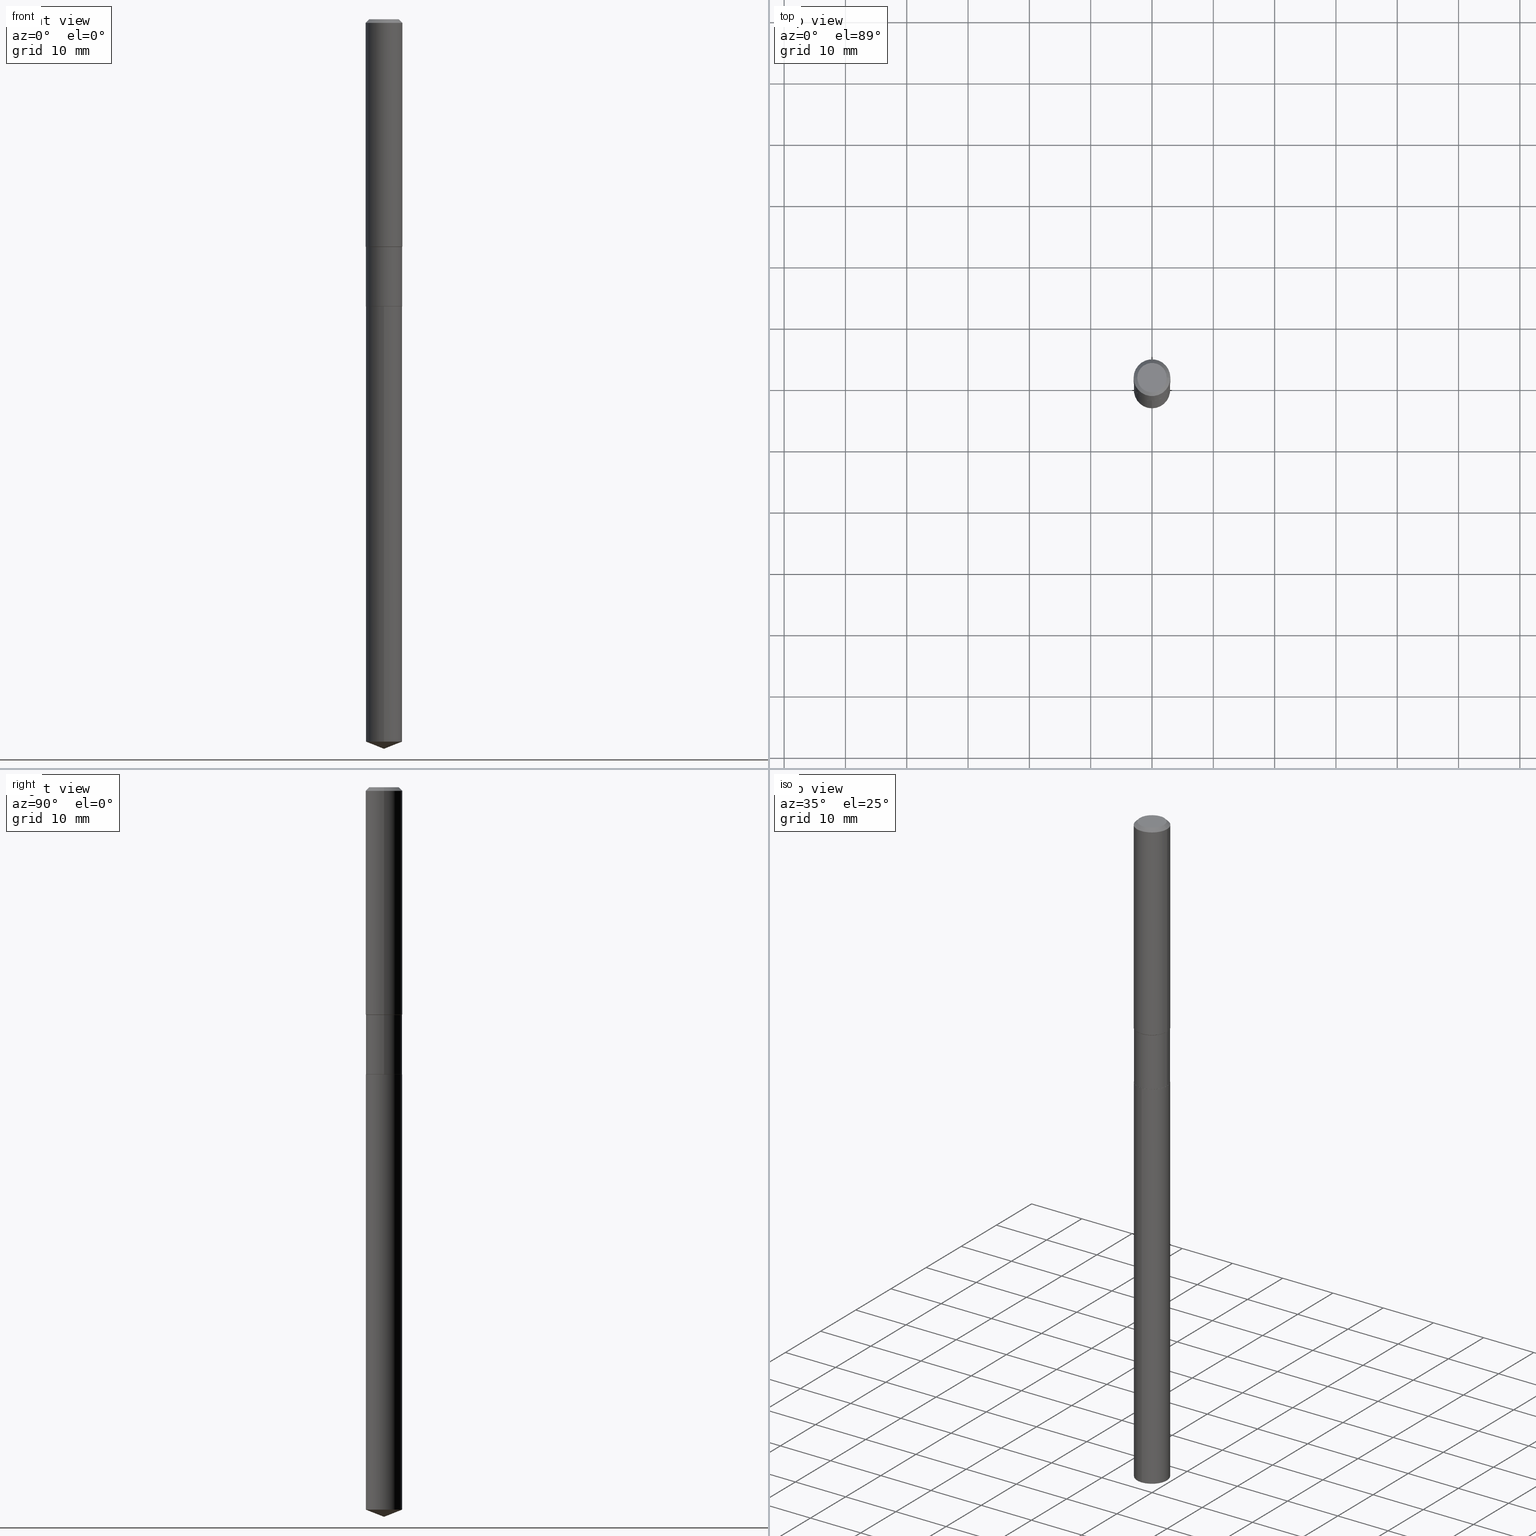
[diagram: canonical four-view strip — front | top / right | iso, engineering-drawing reading convention]
A machine part, canonical four-view strip (front | top / right | iso — engineering-drawing reading convention). The complete STEP part file that produces these views, byte-faithful:
ISO-10303-21;
HEADER;
FILE_DESCRIPTION (( 'STEP AP203' ),
    '1' );
FILE_NAME ('66738.STEP',
    '2024-04-25T04:57:59',
    ( '' ),
    ( '' ),
    'SwSTEP 2.0',
    'SolidWorks 2023',
    '' );
FILE_SCHEMA (( 'CONFIG_CONTROL_DESIGN' ));
ENDSEC;

DATA;
#1 = EDGE_LOOP ( 'NONE', ( #258, #424, #430, #463 ) ) ;
#2 = ADVANCED_FACE ( 'NONE', ( #76 ), #72, .T. ) ;
#3 = CARTESIAN_POINT ( 'NONE',  ( 8.252953875854696891E-16, 0.1161499999999837940, -4.639247298257325625 ) ) ;
#4 = VERTEX_POINT ( 'NONE', #159 ) ;
#5 = LINE ( 'NONE', #314, #442 ) ;
#6 = CONICAL_SURFACE ( 'NONE', #288, 0.1180999999999999966, 0.7853981633974460586 ) ;
#7 = AXIS2_PLACEMENT_3D ( 'NONE', #71, #118, #150 ) ;
#8 = EDGE_LOOP ( 'NONE', ( #52, #445, #345, #199 ) ) ;
#9 = FACE_OUTER_BOUND ( 'NONE', #203, .T. ) ;
#10 = VERTEX_POINT ( 'NONE', #484 ) ;
#11 = CYLINDRICAL_SURFACE ( 'NONE', #478, 0.1161500000000000032 ) ;
#12 = CALENDAR_DATE ( 2024, 25, 4 ) ;
#13 = CARTESIAN_POINT ( 'NONE',  ( -8.110711150131462485E-16, -0.1161500000000161847, -4.639247298257323848 ) ) ;
#14 = CIRCLE ( 'NONE', #349, 0.1156500000000000028 ) ;
#15 = VECTOR ( 'NONE', #403, 39.37007874015748143 ) ;
#16 = ADVANCED_FACE ( 'NONE', ( #68 ), #303, .F. ) ;
#17 = DIRECTION ( 'NONE',  ( 1.000000000000000000, -6.982962677686267499E-15, 4.875432709231658792E-29 ) ) ;
#18 = FACE_OUTER_BOUND ( 'NONE', #370, .T. ) ;
#19 = CARTESIAN_POINT ( 'NONE',  ( 0.1180999999999999966, -9.071566814582237199E-16, -0.02362000000000014088 ) ) ;
#20 = CIRCLE ( 'NONE', #100, 0.1181000000000001632 ) ;
#21 = AXIS2_PLACEMENT_3D ( 'NONE', #353, #132, #86 ) ;
#22 = LINE ( 'NONE', #183, #256 ) ;
#23 = EDGE_CURVE ( 'NONE', #233, #45, #374, .T. ) ;
#24 = EDGE_CURVE ( 'NONE', #75, #318, #365, .T. ) ;
#25 = ADVANCED_BREP_SHAPE_REPRESENTATION ( '66738', ( #257, #97, #420 ), #64 ) ;
#26 = DIRECTION ( 'NONE',  ( -6.982962677686265922E-15, -1.000000000000000000, 2.351999994545211393E-15 ) ) ;
#27 = PERSON_AND_ORGANIZATION_ROLE ( 'design_owner' ) ;
#28 = CARTESIAN_POINT ( 'NONE',  ( 0.1161499999999999477, -5.912823647330860568E-15, -1.461199999999999166 ) ) ;
#29 = MECHANICAL_CONTEXT ( 'NONE', #339, 'mechanical' ) ;
#30 = CIRCLE ( 'NONE', #79, 0.1161500000000000032 ) ;
#31 = VECTOR ( 'NONE', #264, 39.37007874015748143 ) ;
#32 = VERTEX_POINT ( 'NONE', #192 ) ;
#33 = ADVANCED_FACE ( 'NONE', ( #151 ), #6, .T. ) ;
#34 = PERSON_AND_ORGANIZATION ( #321, #368 ) ;
#35 = PERSON_AND_ORGANIZATION ( #321, #368 ) ;
#36 = PRODUCT_RELATED_PRODUCT_CATEGORY ( 'detail', '', ( #251 ) ) ;
#37 = EDGE_LOOP ( 'NONE', ( #224, #237, #421, #240 ) ) ;
#38 = PERSON_AND_ORGANIZATION_ROLE ( 'creator' ) ;
#39 = AXIS2_PLACEMENT_3D ( 'NONE', #247, #394, #44 ) ;
#40 = DIRECTION ( 'NONE',  ( 2.445468806185136597E-29, -3.491481338843145583E-15, -1.000000000000000000 ) ) ;
#41 = CC_DESIGN_PERSON_AND_ORGANIZATION_ASSIGNMENT ( #286, #38, ( #101 ) ) ;
#42 = EDGE_LOOP ( 'NONE', ( #205, #389 ) ) ;
#43 = APPROVAL_STATUS ( 'not_yet_approved' ) ;
#44 = DIRECTION ( 'NONE',  ( -6.982962677686265922E-15, -1.000000000000000000, 4.703999989090422785E-15 ) ) ;
#45 = VERTEX_POINT ( 'NONE', #296 ) ;
#46 = DIRECTION ( 'NONE',  ( -6.982962677686265922E-15, -1.000000000000000000, 2.351999994545211393E-15 ) ) ;
#47 = DIMENSIONAL_EXPONENTS ( 1.000000000000000000, 0.000000000000000000, 0.000000000000000000, 0.000000000000000000, 0.000000000000000000, 0.000000000000000000, 0.000000000000000000 ) ;
#48 = EDGE_LOOP ( 'NONE', ( #267, #172, #119 ) ) ;
#49 = LINE ( 'NONE', #425, #459 ) ;
#50 = ADVANCED_FACE ( 'NONE', ( #300 ), #468, .T. ) ;
#51 = CIRCLE ( 'NONE', #222, 0.1161500000000000032 ) ;
#52 = ORIENTED_EDGE ( 'NONE', *, *, #405, .F. ) ;
#53 = CARTESIAN_POINT ( 'NONE',  ( 3.568550355425657830E-29, -5.094944143706856564E-15, -1.459249999999998826 ) ) ;
#54 = APPROVAL_ROLE ( '' ) ;
#55 = CARTESIAN_POINT ( 'NONE',  ( 4.509444478605390880E-29, -6.438291588826759175E-15, -1.843999999999999417 ) ) ;
#56 = PRODUCT_DEFINITION_SHAPE ( 'NONE', 'NONE',  #438 ) ;
#57 = EDGE_CURVE ( 'NONE', #4, #489, #14, .T. ) ;
#58 = CARTESIAN_POINT ( 'NONE',  ( 5.776197320209327532E-31, -8.246878922347559293E-17, -0.02362000000000014088 ) ) ;
#59 = VECTOR ( 'NONE', #434, 39.37007874015748143 ) ;
#60 = FACE_OUTER_BOUND ( 'NONE', #122, .T. ) ;
#61 = DIRECTION ( 'NONE',  ( -2.445468806185136597E-29, 3.491481338843145583E-15, 1.000000000000000000 ) ) ;
#62 = DIRECTION ( 'NONE',  ( 1.000000000000000000, -6.982962677686265922E-15, 0.000000000000000000 ) ) ;
#63 = EDGE_CURVE ( 'NONE', #413, #75, #408, .T. ) ;
#64 =( GEOMETRIC_REPRESENTATION_CONTEXT ( 3 ) GLOBAL_UNCERTAINTY_ASSIGNED_CONTEXT ( ( #111 ) ) GLOBAL_UNIT_ASSIGNED_CONTEXT ( ( #189, #295, #340 ) ) REPRESENTATION_CONTEXT ( 'NONE', 'WORKASPACE' ) );
#65 = FACE_OUTER_BOUND ( 'NONE', #378, .T. ) ;
#66 = ORIENTED_EDGE ( 'NONE', *, *, #211, .F. ) ;
#67 = DIRECTION ( 'NONE',  ( 0.000000000000000000, 0.000000000000000000, 1.000000000000000000 ) ) ;
#68 = FACE_OUTER_BOUND ( 'NONE', #259, .T. ) ;
#69 = EDGE_CURVE ( 'NONE', #208, #32, #80, .T. ) ;
#70 = ORIENTED_EDGE ( 'NONE', *, *, #23, .T. ) ;
#71 = CARTESIAN_POINT ( 'NONE',  ( 0.000000000000000000, 0.000000000000000000, 0.000000000000000000 ) ) ;
#72 = CYLINDRICAL_SURFACE ( 'NONE', #441, 0.1181000000000000799 ) ;
#73 = ORIENTED_EDGE ( 'NONE', *, *, #305, .F. ) ;
#74 = DATE_AND_TIME ( #412, #169 ) ;
#75 = VERTEX_POINT ( 'NONE', #431 ) ;
#76 = FACE_OUTER_BOUND ( 'NONE', #448, .T. ) ;
#77 = EDGE_CURVE ( 'NONE', #164, #357, #49, .T. ) ;
#78 = ORIENTED_EDGE ( 'NONE', *, *, #310, .T. ) ;
#79 = AXIS2_PLACEMENT_3D ( 'NONE', #55, #271, #93 ) ;
#80 = LINE ( 'NONE', #427, #90 ) ;
#81 = APPROVAL_PERSON_ORGANIZATION ( #232, #386, #54 ) ;
#82 = ORIENTED_EDGE ( 'NONE', *, *, #310, .F. ) ;
#83 = CARTESIAN_POINT ( 'NONE',  ( -8.110711150132146822E-16, -0.1161500000000064425, -1.844499999999999140 ) ) ;
#84 = ORIENTED_EDGE ( 'NONE', *, *, #377, .T. ) ;
#85 = EDGE_CURVE ( 'NONE', #454, #315, #124, .T. ) ;
#86 = DIRECTION ( 'NONE',  ( 1.000000000000000000, -6.982962677686266711E-15, 4.876176775795936353E-29 ) ) ;
#87 = ORIENTED_EDGE ( 'NONE', *, *, #175, .F. ) ;
#88 = DIRECTION ( 'NONE',  ( -6.497071151882127725E-15, -0.9304175679820257949, 0.3665012267242941935 ) ) ;
#89 = AXIS2_PLACEMENT_3D ( 'NONE', #266, #479, #380 ) ;
#90 = VECTOR ( 'NONE', #161, 39.37007874015748143 ) ;
#91 = APPROVAL_ROLE ( '' ) ;
#92 = EDGE_LOOP ( 'NONE', ( #78, #411, #66, #461 ) ) ;
#93 = DIRECTION ( 'NONE',  ( 1.000000000000000000, -6.982962677686265922E-15, 0.000000000000000000 ) ) ;
#94 = EDGE_CURVE ( 'NONE', #413, #135, #301, .T. ) ;
#95 = PERSON_AND_ORGANIZATION_ROLE ( 'design_supplier' ) ;
#96 = CARTESIAN_POINT ( 'NONE',  ( 0.1156500000000000028, -7.247616963170598206E-15, -1.844499999999999584 ) ) ;
#97 = MANIFOLD_SOLID_BREP ( 'Body-Move/Copy2[2]', #105 ) ;
#98 = SHAPE_DEFINITION_REPRESENTATION ( #56, #25 ) ;
#99 = CARTESIAN_POINT ( 'NONE',  ( -0.1181000000000001632, -4.255793172774176789E-15, -1.459249999999998826 ) ) ;
#100 = AXIS2_PLACEMENT_3D ( 'NONE', #212, #268, #458 ) ;
#101 = PRODUCT_DEFINITION_FORMATION_WITH_SPECIFIED_SOURCE ( 'ANY', '', #251, .NOT_KNOWN. ) ;
#102 = DIRECTION ( 'NONE',  ( 1.000000000000000000, -6.982962677686269866E-15, 0.000000000000000000 ) ) ;
#103 = DIRECTION ( 'NONE',  ( -2.445468806185136597E-29, 3.491481338843145583E-15, 1.000000000000000000 ) ) ;
#104 = LINE ( 'NONE', #255, #15 ) ;
#105 = CLOSED_SHELL ( 'NONE', ( #245, #33, #218, #219, #401, #231, #483, #2, #372, #200, #282, #283 ) ) ;
#106 = CONICAL_SURFACE ( 'NONE', #166, 99.94676754584088485, 1.195550537616122622 ) ;
#107 = ORIENTED_EDGE ( 'NONE', *, *, #24, .T. ) ;
#108 = APPLICATION_PROTOCOL_DEFINITION ( 'international standard', 'config_control_design', 1994, #339 ) ;
#109 = EDGE_CURVE ( 'NONE', #315, #274, #388, .T. ) ;
#110 = EDGE_CURVE ( 'NONE', #357, #45, #360, .T. ) ;
#111 = UNCERTAINTY_MEASURE_WITH_UNIT (LENGTH_MEASURE( 1.000000000000000082E-05 ), #189, 'distance_accuracy_value', 'NONE');
#112 = CARTESIAN_POINT ( 'NONE',  ( 4.510667213008483121E-29, -6.440037329496180678E-15, -1.844499999999999362 ) ) ;
#113 = DIRECTION ( 'NONE',  ( 0.7071067811865444641, -2.468850131082224717E-15, 0.7071067811865505703 ) ) ;
#114 = FACE_OUTER_BOUND ( 'NONE', #92, .T. ) ;
#115 = ORIENTED_EDGE ( 'NONE', *, *, #121, .F. ) ;
#116 = LINE ( 'NONE', #152, #31 ) ;
#117 = DIRECTION ( 'NONE',  ( -6.982962677686265133E-15, -1.000000000000000000, 3.498627837349972274E-15 ) ) ;
#118 = DIRECTION ( 'NONE',  ( -2.445468806185136597E-29, 3.491481338843145583E-15, 1.000000000000000000 ) ) ;
#119 = ORIENTED_EDGE ( 'NONE', *, *, #157, .F. ) ;
#120 = ORIENTED_EDGE ( 'NONE', *, *, #337, .F. ) ;
#121 = EDGE_CURVE ( 'NONE', #233, #164, #250, .T. ) ;
#122 = EDGE_LOOP ( 'NONE', ( #383, #457, #407, #107 ) ) ;
#123 = COORDINATED_UNIVERSAL_TIME_OFFSET ( 5, 0, .BEHIND. ) ;
#124 = LINE ( 'NONE', #346, #312 ) ;
#125 = ADVANCED_FACE ( 'NONE', ( #356 ), #11, .T. ) ;
#126 = EDGE_LOOP ( 'NONE', ( #465, #184, #82 ) ) ;
#127 = CIRCLE ( 'NONE', #469, 0.1161500000000000032 ) ;
#128 = DIRECTION ( 'NONE',  ( -6.982962677686265922E-15, -1.000000000000000000, 2.351999994545211393E-15 ) ) ;
#129 = CC_DESIGN_APPROVAL ( #423, ( #438 ) ) ;
#130 = EDGE_LOOP ( 'NONE', ( #241, #170, #355, #304 ) ) ;
#131 = EDGE_CURVE ( 'NONE', #32, #274, #51, .T. ) ;
#132 = DIRECTION ( 'NONE',  ( -2.445468806185136597E-29, 3.491481338843145583E-15, 1.000000000000000000 ) ) ;
#133 = ORIENTED_EDGE ( 'NONE', *, *, #211, .T. ) ;
#134 = DIRECTION ( 'NONE',  ( -2.445468806185136877E-29, 3.491481338843145188E-15, 1.000000000000000000 ) ) ;
#135 = VERTEX_POINT ( 'NONE', #239 ) ;
#136 = DIRECTION ( 'NONE',  ( -2.445477622213737592E-29, 3.491468713788411953E-15, 1.000000000000000000 ) ) ;
#137 = VECTOR ( 'NONE', #113, 39.37007874015748143 ) ;
#138 = AXIS2_PLACEMENT_3D ( 'NONE', #220, #281, #102 ) ;
#139 = CC_DESIGN_PERSON_AND_ORGANIZATION_ASSIGNMENT ( #35, #194, ( #438 ) ) ;
#140 = CARTESIAN_POINT ( 'NONE',  ( 1.134515919063907400E-28, -1.619781008430632187E-14, -4.639247298257324736 ) ) ;
#141 = DIRECTION ( 'NONE',  ( 1.000000000000000000, -6.982962677686269866E-15, 0.000000000000000000 ) ) ;
#142 = DATE_TIME_ROLE ( 'creation_date' ) ;
#143 = FACE_OUTER_BOUND ( 'NONE', #387, .T. ) ;
#144 = AXIS2_PLACEMENT_3D ( 'NONE', #198, #450, #117 ) ;
#145 = VECTOR ( 'NONE', #136, 39.37007874015748143 ) ;
#146 = EDGE_CURVE ( 'NONE', #350, #10, #30, .T. ) ;
#147 = DIRECTION ( 'NONE',  ( -1.000000000000000000, 6.982962677686266711E-15, 0.000000000000000000 ) ) ;
#148 = DIRECTION ( 'NONE',  ( 1.000000000000000000, -6.982962677686266711E-15, 0.000000000000000000 ) ) ;
#149 = AXIS2_PLACEMENT_3D ( 'NONE', #204, #163, #128 ) ;
#150 = DIRECTION ( 'NONE',  ( 1.000000000000000000, -6.982962677686266711E-15, 4.876176775795935232E-29 ) ) ;
#151 = FACE_OUTER_BOUND ( 'NONE', #130, .T. ) ;
#152 = CARTESIAN_POINT ( 'NONE',  ( 0.1161499999999999755, -8.110711150132597459E-16, 5.663679325086977697E-30 ) ) ;
#153 = DIRECTION ( 'NONE',  ( -0.7071067811865459074, 2.468850131082240100E-15, -0.7071067811865491270 ) ) ;
#154 = CARTESIAN_POINT ( 'NONE',  ( 4.510667213008483121E-29, -6.440037329496180678E-15, -1.844499999999999362 ) ) ;
#155 = VECTOR ( 'NONE', #153, 39.37007874015748143 ) ;
#156 = CIRCLE ( 'NONE', #39, 0.1161500000000000032 ) ;
#157 = EDGE_CURVE ( 'NONE', #208, #315, #156, .T. ) ;
#158 = AXIS2_PLACEMENT_3D ( 'NONE', #112, #260, #26 ) ;
#159 = CARTESIAN_POINT ( 'NONE',  ( 0.1156500000000000028, -7.247616963170598206E-15, -1.844499999999999584 ) ) ;
#160 = ORIENTED_EDGE ( 'NONE', *, *, #57, .F. ) ;
#161 = DIRECTION ( 'NONE',  ( -2.445477622213737592E-29, 3.491468713788411953E-15, 1.000000000000000000 ) ) ;
#162 = ORIENTED_EDGE ( 'NONE', *, *, #193, .T. ) ;
#163 = DIRECTION ( 'NONE',  ( -2.445477622213737592E-29, 3.491468713788411953E-15, 1.000000000000000000 ) ) ;
#164 = VERTEX_POINT ( 'NONE', #238 ) ;
#165 = AXIS2_PLACEMENT_3D ( 'NONE', #154, #416, #371 ) ;
#166 = AXIS2_PLACEMENT_3D ( 'NONE', #402, #366, #475 ) ;
#167 = DIRECTION ( 'NONE',  ( 1.000000000000000000, -6.982962677686269866E-15, 0.000000000000000000 ) ) ;
#168 = CC_DESIGN_PERSON_AND_ORGANIZATION_ASSIGNMENT ( #379, #95, ( #101 ) ) ;
#169 = LOCAL_TIME ( 0, 57, 59.00000000000000000, #449 ) ;
#170 = ORIENTED_EDGE ( 'NONE', *, *, #395, .T. ) ;
#171 = DIRECTION ( 'NONE',  ( 2.438088387897960049E-29, -3.491481338843145188E-15, -1.000000000000000000 ) ) ;
#172 = ORIENTED_EDGE ( 'NONE', *, *, #85, .T. ) ;
#173 = CARTESIAN_POINT ( 'NONE',  ( 4.510667213008483121E-29, -6.440037329496180678E-15, -1.844499999999999362 ) ) ;
#174 = DATE_TIME_ROLE ( 'classification_date' ) ;
#175 = EDGE_CURVE ( 'NONE', #45, #357, #20, .T. ) ;
#176 = CYLINDRICAL_SURFACE ( 'NONE', #328, 0.1161499999999999755 ) ;
#177 = AXIS2_PLACEMENT_3D ( 'NONE', #248, #474, #476 ) ;
#178 = DATE_AND_TIME ( #201, #382 ) ;
#179 = DIRECTION ( 'NONE',  ( 1.000000000000000000, -6.982962677686265922E-15, 4.876176775795935793E-29 ) ) ;
#180 = DIRECTION ( 'NONE',  ( 1.000000000000000000, -6.982962677686269866E-15, 0.000000000000000000 ) ) ;
#181 = DIRECTION ( 'NONE',  ( -2.445468806185136597E-29, 3.491481338843145583E-15, 1.000000000000000000 ) ) ;
#182 = APPROVAL_PERSON_ORGANIZATION ( #34, #423, #299 ) ;
#183 = CARTESIAN_POINT ( 'NONE',  ( 0.1180999999999999966, -8.926936027602933910E-16, -0.02362000000000014088 ) ) ;
#184 = ORIENTED_EDGE ( 'NONE', *, *, #213, .T. ) ;
#185 = CARTESIAN_POINT ( 'NONE',  ( -0.1156500000000000028, -5.618294655589625385E-15, -1.844499999999999584 ) ) ;
#186 = FACE_OUTER_BOUND ( 'NONE', #343, .T. ) ;
#187 = ORIENTED_EDGE ( 'NONE', *, *, #316, .T. ) ;
#188 = CONICAL_SURFACE ( 'NONE', #404, 0.1180999999999999966, 0.7853981633974460586 ) ;
#189 =( CONVERSION_BASED_UNIT ( 'INCH', #373 ) LENGTH_UNIT ( ) NAMED_UNIT ( #47 ) );
#190 = ORIENTED_EDGE ( 'NONE', *, *, #175, .T. ) ;
#191 = APPROVAL_STATUS ( 'not_yet_approved' ) ;
#192 = CARTESIAN_POINT ( 'NONE',  ( 8.252953875854700835E-16, 0.1161499999999935501, -1.844499999999999584 ) ) ;
#193 = EDGE_CURVE ( 'NONE', #350, #164, #309, .T. ) ;
#194 = PERSON_AND_ORGANIZATION_ROLE ( 'creator' ) ;
#195 = CARTESIAN_POINT ( 'NONE',  ( 0.000000000000000000, 0.000000000000000000, 0.000000000000000000 ) ) ;
#196 = ORIENTED_EDGE ( 'NONE', *, *, #77, .T. ) ;
#197 = AXIS2_PLACEMENT_3D ( 'NONE', #140, #325, #439 ) ;
#198 = CARTESIAN_POINT ( 'NONE',  ( -8.482160014494133121E-28, 1.211018439696339848E-13, 34.68507874015747916 ) ) ;
#199 = ORIENTED_EDGE ( 'NONE', *, *, #146, .F. ) ;
#200 = ADVANCED_FACE ( 'NONE', ( #307 ), #418, .F. ) ;
#201 = CALENDAR_DATE ( 2024, 25, 4 ) ;
#202 = CARTESIAN_POINT ( 'NONE',  ( 2.358133508849003952E-46, -3.366789680499277518E-32, -9.642868896486260050E-18 ) ) ;
#203 = EDGE_LOOP ( 'NONE', ( #190, #311, #417, #120 ) ) ;
#204 = CARTESIAN_POINT ( 'NONE',  ( 4.510667213008483121E-29, -6.440037329496180678E-15, -1.844499999999999362 ) ) ;
#205 = ORIENTED_EDGE ( 'NONE', *, *, #94, .T. ) ;
#206 = VECTOR ( 'NONE', #364, 39.37007874015748143 ) ;
#207 = DIRECTION ( 'NONE',  ( -1.000000000000000000, 6.982962677686265922E-15, -4.876176775795935793E-29 ) ) ;
#208 = VERTEX_POINT ( 'NONE', #3 ) ;
#209 = DIRECTION ( 'NONE',  ( 1.000000000000000000, -6.982962677686263555E-15, 0.000000000000000000 ) ) ;
#210 = SECURITY_CLASSIFICATION_LEVEL ( 'unclassified' ) ;
#211 = EDGE_CURVE ( 'NONE', #274, #32, #215, .T. ) ;
#212 = CARTESIAN_POINT ( 'NONE',  ( 3.568550355425657830E-29, -5.094944143706856564E-15, -1.459249999999998826 ) ) ;
#213 = EDGE_CURVE ( 'NONE', #454, #208, #5, .T. ) ;
#214 = LINE ( 'NONE', #284, #59 ) ;
#215 = CIRCLE ( 'NONE', #149, 0.1161500000000000032 ) ;
#216 = SECURITY_CLASSIFICATION ( '', '', #210 ) ;
#217 = CARTESIAN_POINT ( 'NONE',  ( 4.510667213008483681E-29, -6.440037329496181467E-15, -1.844499999999999584 ) ) ;
#218 = ADVANCED_FACE ( 'NONE', ( #9 ), #462, .T. ) ;
#219 = ADVANCED_FACE ( 'NONE', ( #317 ), #435, .T. ) ;
#220 = CARTESIAN_POINT ( 'NONE',  ( 4.510667213008483681E-29, -6.440037329496181467E-15, -1.844499999999999584 ) ) ;
#221 = CARTESIAN_POINT ( 'NONE',  ( 4.509444478605390880E-29, -6.438291588826759175E-15, -1.843999999999999417 ) ) ;
#222 = AXIS2_PLACEMENT_3D ( 'NONE', #319, #456, #385 ) ;
#223 = CYLINDRICAL_SURFACE ( 'NONE', #158, 0.1161500000000000032 ) ;
#224 = ORIENTED_EDGE ( 'NONE', *, *, #193, .F. ) ;
#225 = DIRECTION ( 'NONE',  ( 1.000000000000000000, 0.000000000000000000, 0.000000000000000000 ) ) ;
#226 = ORIENTED_EDGE ( 'NONE', *, *, #131, .T. ) ;
#227 = CARTESIAN_POINT ( 'NONE',  ( -0.09447999999999998066, 7.009847083995354710E-16, -1.928573779297727792E-17 ) ) ;
#228 = VECTOR ( 'NONE', #446, 39.37007874015748143 ) ;
#229 = CC_DESIGN_SECURITY_CLASSIFICATION ( #216, ( #101 ) ) ;
#230 = CARTESIAN_POINT ( 'NONE',  ( -0.1156500000000000028, -5.615645428415514184E-15, -1.844499999999999584 ) ) ;
#231 = ADVANCED_FACE ( 'NONE', ( #253 ), #176, .T. ) ;
#232 = PERSON_AND_ORGANIZATION ( #321, #368 ) ;
#233 = VERTEX_POINT ( 'NONE', #323 ) ;
#234 = ORIENTED_EDGE ( 'NONE', *, *, #121, .T. ) ;
#235 = AXIS2_PLACEMENT_3D ( 'NONE', #58, #181, #148 ) ;
#236 = DIRECTION ( 'NONE',  ( -0.7071067811865444641, 7.493145998870343116E-15, 0.7071067811865505703 ) ) ;
#237 = ORIENTED_EDGE ( 'NONE', *, *, #146, .T. ) ;
#238 = CARTESIAN_POINT ( 'NONE',  ( -0.1161499999999999477, -4.944726672986823807E-15, -1.461199999999999166 ) ) ;
#239 = CARTESIAN_POINT ( 'NONE',  ( 0.09447999999999998066, -7.704367267948738690E-16, -1.928573779296752193E-17 ) ) ;
#240 = ORIENTED_EDGE ( 'NONE', *, *, #316, .F. ) ;
#241 = ORIENTED_EDGE ( 'NONE', *, *, #292, .F. ) ;
#242 = AXIS2_PLACEMENT_3D ( 'NONE', #400, #440, #179 ) ;
#243 = CIRCLE ( 'NONE', #235, 0.1180999999999999966 ) ;
#244 = DIRECTION ( 'NONE',  ( -2.445468806185136597E-29, 3.491481338843145583E-15, 1.000000000000000000 ) ) ;
#245 = ADVANCED_FACE ( 'NONE', ( #143 ), #289, .T. ) ;
#246 = COORDINATED_UNIVERSAL_TIME_OFFSET ( 5, 0, .BEHIND. ) ;
#247 = CARTESIAN_POINT ( 'NONE',  ( 1.134515919063907400E-28, -1.619781008430632187E-14, -4.639247298257324736 ) ) ;
#248 = CARTESIAN_POINT ( 'NONE',  ( 4.510667213008483681E-29, -6.440037329496181467E-15, -1.844499999999999584 ) ) ;
#249 = CARTESIAN_POINT ( 'NONE',  ( 5.776197320209327532E-31, -8.246878922347559293E-17, -0.02362000000000014088 ) ) ;
#250 = CIRCLE ( 'NONE', #410, 0.1161499999999999477 ) ;
#251 = PRODUCT ( '66738', '66738', '', ( #29 ) ) ;
#252 = CC_DESIGN_DATE_AND_TIME_ASSIGNMENT ( #369, #142, ( #438 ) ) ;
#253 = FACE_OUTER_BOUND ( 'NONE', #37, .T. ) ;
#254 = DIRECTION ( 'NONE',  ( -2.445468806185136597E-29, 3.491481338843145583E-15, 1.000000000000000000 ) ) ;
#255 = CARTESIAN_POINT ( 'NONE',  ( -0.1181000000000000799, 8.391509709326788873E-16, -5.809262341591047988E-30 ) ) ;
#256 = VECTOR ( 'NONE', #330, 39.37007874015748143 ) ;
#257 = MANIFOLD_SOLID_BREP ( 'Body-Move/Copy2[1]', #409 ) ;
#258 = ORIENTED_EDGE ( 'NONE', *, *, #69, .F. ) ;
#259 = EDGE_LOOP ( 'NONE', ( #133, #226 ) ) ;
#260 = DIRECTION ( 'NONE',  ( -2.445477622213737592E-29, 3.491468713788411953E-15, 1.000000000000000000 ) ) ;
#261 = DIRECTION ( 'NONE',  ( -2.445468806185136597E-29, 3.491481338843145583E-15, 1.000000000000000000 ) ) ;
#262 = APPLICATION_PROTOCOL_DEFINITION ( 'international standard', 'config_control_design', 1994, #486 ) ;
#263 = CONICAL_SURFACE ( 'NONE', #177, 0.1156500000000000028, 0.7853981633972775267 ) ;
#264 = DIRECTION ( 'NONE',  ( -2.445468806185136877E-29, 3.491481338843145188E-15, 1.000000000000000000 ) ) ;
#265 = CALENDAR_DATE ( 2024, 25, 4 ) ;
#266 = CARTESIAN_POINT ( 'NONE',  ( 5.776197320209327532E-31, -8.246878922347559293E-17, -0.02362000000000014088 ) ) ;
#267 = ORIENTED_EDGE ( 'NONE', *, *, #213, .F. ) ;
#268 = DIRECTION ( 'NONE',  ( -2.445468806185136597E-29, 3.491481338843145583E-15, 1.000000000000000000 ) ) ;
#269 = ORIENTED_EDGE ( 'NONE', *, *, #399, .F. ) ;
#270 = AXIS2_PLACEMENT_3D ( 'NONE', #464, #275, #180 ) ;
#271 = DIRECTION ( 'NONE',  ( -2.445468806185136597E-29, 3.491481338843145583E-15, 1.000000000000000000 ) ) ;
#272 = ORIENTED_EDGE ( 'NONE', *, *, #110, .T. ) ;
#273 = DIRECTION ( 'NONE',  ( 6.611014441532074478E-15, 0.9304175679820283484, 0.3665012267242876431 ) ) ;
#274 = VERTEX_POINT ( 'NONE', #287 ) ;
#275 = DIRECTION ( 'NONE',  ( -2.445468806185136597E-29, 3.491481338843145583E-15, 1.000000000000000000 ) ) ;
#276 = COORDINATED_UNIVERSAL_TIME_OFFSET ( 5, 0, .BEHIND. ) ;
#277 = ORIENTED_EDGE ( 'NONE', *, *, #23, .F. ) ;
#278 = AXIS2_PLACEMENT_3D ( 'NONE', #217, #61, #362 ) ;
#279 = DIRECTION ( 'NONE',  ( -2.445468806185136597E-29, 3.491481338843145583E-15, 1.000000000000000000 ) ) ;
#280 = APPROVAL_DATE_TIME ( #396, #386 ) ;
#281 = DIRECTION ( 'NONE',  ( -2.445468806185136597E-29, 3.491481338843145583E-15, 1.000000000000000000 ) ) ;
#282 = ADVANCED_FACE ( 'NONE', ( #18 ), #363, .F. ) ;
#283 = ADVANCED_FACE ( 'NONE', ( #470 ), #263, .T. ) ;
#284 = CARTESIAN_POINT ( 'NONE',  ( 0.1181000000000000799, -8.246878922347486570E-16, 5.758764772215004644E-30 ) ) ;
#285 = APPROVAL ( #384, 'UNSPECIFIED' ) ;
#286 = PERSON_AND_ORGANIZATION ( #321, #368 ) ;
#287 = CARTESIAN_POINT ( 'NONE',  ( -8.110711150132146822E-16, -0.1161500000000064425, -1.844499999999999140 ) ) ;
#288 = AXIS2_PLACEMENT_3D ( 'NONE', #338, #40, #453 ) ;
#289 = CONICAL_SURFACE ( 'NONE', #278, 0.1156500000000000028, 0.7853981633972775267 ) ;
#290 = CARTESIAN_POINT ( 'NONE',  ( 0.000000000000000000, 0.000000000000000000, 0.000000000000000000 ) ) ;
#291 = CARTESIAN_POINT ( 'NONE',  ( -0.1161500000000000032, -4.944726672986823807E-15, -1.843999999999999417 ) ) ;
#292 = EDGE_CURVE ( 'NONE', #135, #413, #342, .T. ) ;
#293 = CARTESIAN_POINT ( 'NONE',  ( 1.145706266007135908E-28, -1.635753092409870552E-14, -4.684999999999999609 ) ) ;
#294 = CIRCLE ( 'NONE', #138, 0.1156500000000000028 ) ;
#295 =( NAMED_UNIT ( * ) PLANE_ANGLE_UNIT ( ) SI_UNIT ( $, .RADIAN. ) );
#296 = CARTESIAN_POINT ( 'NONE',  ( 0.1181000000000001632, -5.919632035941605615E-15, -1.459249999999998826 ) ) ;
#297 = EDGE_CURVE ( 'NONE', #489, #4, #294, .T. ) ;
#298 = ORIENTED_EDGE ( 'NONE', *, *, #57, .T. ) ;
#299 = APPROVAL_ROLE ( '' ) ;
#300 = FACE_OUTER_BOUND ( 'NONE', #48, .T. ) ;
#301 = CIRCLE ( 'NONE', #367, 0.09447999999999998066 ) ;
#302 = APPROVAL_PERSON_ORGANIZATION ( #306, #285, #91 ) ;
#303 = PLANE ( 'NONE',  #165 ) ;
#304 = ORIENTED_EDGE ( 'NONE', *, *, #63, .F. ) ;
#305 = EDGE_CURVE ( 'NONE', #4, #10, #358, .T. ) ;
#306 = PERSON_AND_ORGANIZATION ( #321, #368 ) ;
#307 = FACE_OUTER_BOUND ( 'NONE', #42, .T. ) ;
#308 = ORIENTED_EDGE ( 'NONE', *, *, #377, .F. ) ;
#309 = LINE ( 'NONE', #490, #381 ) ;
#310 = EDGE_CURVE ( 'NONE', #315, #208, #392, .T. ) ;
#311 = ORIENTED_EDGE ( 'NONE', *, *, #399, .T. ) ;
#312 = VECTOR ( 'NONE', #88, 39.37007874015748854 ) ;
#313 = CONICAL_SURFACE ( 'NONE', #333, 0.1161499999999999477, 0.7853981633974439491 ) ;
#314 = CARTESIAN_POINT ( 'NONE',  ( 1.145706294525379776E-28, -1.635753092409870552E-14, -4.684999999999999609 ) ) ;
#315 = VERTEX_POINT ( 'NONE', #13 ) ;
#316 = EDGE_CURVE ( 'NONE', #164, #233, #451, .T. ) ;
#317 = FACE_OUTER_BOUND ( 'NONE', #332, .T. ) ;
#318 = VERTEX_POINT ( 'NONE', #19 ) ;
#319 = CARTESIAN_POINT ( 'NONE',  ( 4.510667213008483121E-29, -6.440037329496180678E-15, -1.844499999999999362 ) ) ;
#320 = CALENDAR_DATE ( 2024, 25, 4 ) ;
#321 = PERSON ( 'UNSPECIFIED', 'UNSPECIFIED', 'UNSPECIFIED', ('UNSPECIFIED'), ('UNSPECIFIED'), ('UNSPECIFIED') ) ;
#322 = AXIS2_PLACEMENT_3D ( 'NONE', #53, #244, #209 ) ;
#323 = CARTESIAN_POINT ( 'NONE',  ( 0.1161499999999999477, -5.912823647330860568E-15, -1.461199999999999166 ) ) ;
#324 = EDGE_CURVE ( 'NONE', #318, #75, #243, .T. ) ;
#325 = DIRECTION ( 'NONE',  ( -2.445477622213737592E-29, 3.491468713788411953E-15, 1.000000000000000000 ) ) ;
#326 = DIRECTION ( 'NONE',  ( 1.000000000000000000, -6.982962677686266711E-15, 4.876176775795935232E-29 ) ) ;
#327 = FACE_OUTER_BOUND ( 'NONE', #126, .T. ) ;
#328 = AXIS2_PLACEMENT_3D ( 'NONE', #290, #254, #326 ) ;
#329 = ADVANCED_FACE ( 'NONE', ( #327 ), #106, .T. ) ;
#330 = DIRECTION ( 'NONE',  ( 0.7071067811865459074, -7.319954787623249734E-15, -0.7071067811865491270 ) ) ;
#331 = DIRECTION ( 'NONE',  ( -2.445468806185136597E-29, 3.491481338843145583E-15, 1.000000000000000000 ) ) ;
#332 = EDGE_LOOP ( 'NONE', ( #234, #196, #87, #277 ) ) ;
#333 = AXIS2_PLACEMENT_3D ( 'NONE', #487, #331, #406 ) ;
#334 =( LENGTH_UNIT ( ) NAMED_UNIT ( * ) SI_UNIT ( $, .METRE. ) );
#335 = CC_DESIGN_PERSON_AND_ORGANIZATION_ASSIGNMENT ( #447, #27, ( #251 ) ) ;
#336 = DIRECTION ( 'NONE',  ( 1.000000000000000000, -6.982962677686269866E-15, 0.000000000000000000 ) ) ;
#337 = EDGE_CURVE ( 'NONE', #45, #318, #214, .T. ) ;
#338 = CARTESIAN_POINT ( 'NONE',  ( 5.776197320209327532E-31, -8.246878922347559293E-17, -0.02362000000000014088 ) ) ;
#339 = APPLICATION_CONTEXT ( 'configuration controlled 3d designs of mechanical parts and assemblies' ) ;
#340 =( NAMED_UNIT ( * ) SI_UNIT ( $, .STERADIAN. ) SOLID_ANGLE_UNIT ( ) );
#341 = DIRECTION ( 'NONE',  ( 1.000000000000000000, -6.982962677686266711E-15, 4.876176775795936353E-29 ) ) ;
#342 = CIRCLE ( 'NONE', #351, 0.09447999999999998066 ) ;
#343 = EDGE_LOOP ( 'NONE', ( #426, #187, #70, #481 ) ) ;
#344 = CARTESIAN_POINT ( 'NONE',  ( 4.510667213008483681E-29, -6.440037329496181467E-15, -1.844499999999999584 ) ) ;
#345 = ORIENTED_EDGE ( 'NONE', *, *, #305, .T. ) ;
#346 = CARTESIAN_POINT ( 'NONE',  ( 1.145703013774184976E-28, -1.635757749792562073E-14, -4.684999999999999609 ) ) ;
#347 = ORIENTED_EDGE ( 'NONE', *, *, #297, .F. ) ;
#348 = DIRECTION ( 'NONE',  ( -2.445477622213737592E-29, 3.491468713788411953E-15, 1.000000000000000000 ) ) ;
#349 = AXIS2_PLACEMENT_3D ( 'NONE', #344, #261, #336 ) ;
#350 = VERTEX_POINT ( 'NONE', #291 ) ;
#351 = AXIS2_PLACEMENT_3D ( 'NONE', #397, #437, #17 ) ;
#352 = CC_DESIGN_APPROVAL ( #386, ( #216 ) ) ;
#353 = CARTESIAN_POINT ( 'NONE',  ( 0.000000000000000000, 0.000000000000000000, 0.000000000000000000 ) ) ;
#354 = PERSON_AND_ORGANIZATION ( #321, #368 ) ;
#355 = ORIENTED_EDGE ( 'NONE', *, *, #324, .T. ) ;
#356 = FACE_OUTER_BOUND ( 'NONE', #1, .T. ) ;
#357 = VERTEX_POINT ( 'NONE', #99 ) ;
#358 = LINE ( 'NONE', #96, #206 ) ;
#359 = CC_DESIGN_DATE_AND_TIME_ASSIGNMENT ( #428, #174, ( #216 ) ) ;
#360 = CIRCLE ( 'NONE', #322, 0.1181000000000001632 ) ;
#361 = LOCAL_TIME ( 0, 57, 59.00000000000000000, #123 ) ;
#362 = DIRECTION ( 'NONE',  ( 1.000000000000000000, -6.982962677686269866E-15, 0.000000000000000000 ) ) ;
#363 = PLANE ( 'NONE',  #242 ) ;
#364 = DIRECTION ( 'NONE',  ( 0.7071067811864267805, -2.468850131080992517E-15, 0.7071067811866682540 ) ) ;
#365 = CIRCLE ( 'NONE', #89, 0.1180999999999999966 ) ;
#366 = DIRECTION ( 'NONE',  ( -2.445477622213737592E-29, 3.491468713788411953E-15, 1.000000000000000000 ) ) ;
#367 = AXIS2_PLACEMENT_3D ( 'NONE', #467, #393, #422 ) ;
#368 = ORGANIZATION ( 'UNSPECIFIED', 'UNSPECIFIED', '' ) ;
#369 = DATE_AND_TIME ( #265, #444 ) ;
#370 = EDGE_LOOP ( 'NONE', ( #160, #347 ) ) ;
#371 = DIRECTION ( 'NONE',  ( 6.982962677686265922E-15, 1.000000000000000000, -3.491468713788411953E-15 ) ) ;
#372 = ADVANCED_FACE ( 'NONE', ( #60 ), #188, .T. ) ;
#373 = LENGTH_MEASURE_WITH_UNIT ( LENGTH_MEASURE( 0.02539999999999999897 ), #334 );
#374 = LINE ( 'NONE', #28, #137 ) ;
#375 = APPROVAL_DATE_TIME ( #74, #423 ) ;
#376 = DIRECTION ( 'NONE',  ( -2.445468806185136597E-29, 3.491481338843145583E-15, 1.000000000000000000 ) ) ;
#377 = EDGE_CURVE ( 'NONE', #10, #350, #127, .T. ) ;
#378 = EDGE_LOOP ( 'NONE', ( #84, #162, #115, #485 ) ) ;
#379 = PERSON_AND_ORGANIZATION ( #321, #368 ) ;
#380 = DIRECTION ( 'NONE',  ( 1.000000000000000000, -6.982962677686266711E-15, 0.000000000000000000 ) ) ;
#381 = VECTOR ( 'NONE', #134, 39.37007874015748143 ) ;
#382 = LOCAL_TIME ( 0, 57, 59.00000000000000000, #246 ) ;
#383 = ORIENTED_EDGE ( 'NONE', *, *, #395, .F. ) ;
#384 = APPROVAL_STATUS ( 'not_yet_approved' ) ;
#385 = DIRECTION ( 'NONE',  ( -6.982962677686265922E-15, -1.000000000000000000, 2.351999994545211393E-15 ) ) ;
#386 = APPROVAL ( #43, 'UNSPECIFIED' ) ;
#387 = EDGE_LOOP ( 'NONE', ( #298, #391, #308, #73 ) ) ;
#388 = LINE ( 'NONE', #83, #145 ) ;
#389 = ORIENTED_EDGE ( 'NONE', *, *, #292, .T. ) ;
#390 = CARTESIAN_POINT ( 'NONE',  ( 3.573319019597719083E-29, -5.101752532317600822E-15, -1.461199999999999166 ) ) ;
#391 = ORIENTED_EDGE ( 'NONE', *, *, #405, .T. ) ;
#392 = CIRCLE ( 'NONE', #197, 0.1161500000000000032 ) ;
#393 = DIRECTION ( 'NONE',  ( -2.445468806185136597E-29, 3.491481338843145583E-15, 1.000000000000000000 ) ) ;
#394 = DIRECTION ( 'NONE',  ( -2.445477622213737592E-29, 3.491468713788411953E-15, 1.000000000000000000 ) ) ;
#395 = EDGE_CURVE ( 'NONE', #135, #318, #22, .T. ) ;
#396 = DATE_AND_TIME ( #320, #436 ) ;
#397 = CARTESIAN_POINT ( 'NONE',  ( 4.716267017698007905E-46, -6.733579360998555036E-32, -1.928573779297252010E-17 ) ) ;
#398 = DIRECTION ( 'NONE',  ( 2.445468806185136597E-29, -3.491481338843145583E-15, -1.000000000000000000 ) ) ;
#399 = EDGE_CURVE ( 'NONE', #357, #75, #104, .T. ) ;
#400 = CARTESIAN_POINT ( 'NONE',  ( 1.468176411848597584E-29, -1.079705732457938967E-14, -1.844499999999999362 ) ) ;
#401 = ADVANCED_FACE ( 'NONE', ( #65 ), #480, .T. ) ;
#402 = CARTESIAN_POINT ( 'NONE',  ( -8.482160014494133121E-28, 1.211018439696339848E-13, 34.68507874015747916 ) ) ;
#403 = DIRECTION ( 'NONE',  ( -2.445468806185136877E-29, 3.491481338843145188E-15, 1.000000000000000000 ) ) ;
#404 = AXIS2_PLACEMENT_3D ( 'NONE', #249, #398, #147 ) ;
#405 = EDGE_CURVE ( 'NONE', #489, #350, #415, .T. ) ;
#406 = DIRECTION ( 'NONE',  ( 1.000000000000000000, -6.982962677686269866E-15, 0.000000000000000000 ) ) ;
#407 = ORIENTED_EDGE ( 'NONE', *, *, #63, .T. ) ;
#408 = LINE ( 'NONE', #482, #155 ) ;
#409 = CLOSED_SHELL ( 'NONE', ( #466, #329, #50, #125, #16 ) ) ;
#410 = AXIS2_PLACEMENT_3D ( 'NONE', #390, #279, #167 ) ;
#411 = ORIENTED_EDGE ( 'NONE', *, *, #69, .T. ) ;
#412 = CALENDAR_DATE ( 2024, 25, 4 ) ;
#413 = VERTEX_POINT ( 'NONE', #227 ) ;
#414 = ORIENTED_EDGE ( 'NONE', *, *, #24, .F. ) ;
#415 = LINE ( 'NONE', #185, #228 ) ;
#416 = DIRECTION ( 'NONE',  ( 2.445477622213737031E-29, -3.491468713788411953E-15, -1.000000000000000000 ) ) ;
#417 = ORIENTED_EDGE ( 'NONE', *, *, #324, .F. ) ;
#418 = PLANE ( 'NONE',  #429 ) ;
#419 = AXIS2_PLACEMENT_3D ( 'NONE', #472, #433, #141 ) ;
#420 = AXIS2_PLACEMENT_3D ( 'NONE', #477, #67, #225 ) ;
#421 = ORIENTED_EDGE ( 'NONE', *, *, #432, .T. ) ;
#422 = DIRECTION ( 'NONE',  ( 1.000000000000000000, -6.982962677686267499E-15, 4.875432709231658792E-29 ) ) ;
#423 = APPROVAL ( #191, 'UNSPECIFIED' ) ;
#424 = ORIENTED_EDGE ( 'NONE', *, *, #157, .T. ) ;
#425 = CARTESIAN_POINT ( 'NONE',  ( -0.1161499999999999477, -4.276457144732245419E-15, -1.461199999999999166 ) ) ;
#426 = ORIENTED_EDGE ( 'NONE', *, *, #77, .F. ) ;
#427 = CARTESIAN_POINT ( 'NONE',  ( 8.252953875854013540E-16, 0.1161499999999935639, -1.844499999999999584 ) ) ;
#428 = DATE_AND_TIME ( #12, #361 ) ;
#429 = AXIS2_PLACEMENT_3D ( 'NONE', #202, #171, #207 ) ;
#430 = ORIENTED_EDGE ( 'NONE', *, *, #109, .T. ) ;
#431 = CARTESIAN_POINT ( 'NONE',  ( -0.1180999999999999966, -1.749555495532486433E-15, -0.02362000000000014088 ) ) ;
#432 = EDGE_CURVE ( 'NONE', #10, #233, #116, .T. ) ;
#433 = DIRECTION ( 'NONE',  ( -2.445468806185136597E-29, 3.491481338843145583E-15, 1.000000000000000000 ) ) ;
#434 = DIRECTION ( 'NONE',  ( -2.445468806185136877E-29, 3.491481338843145188E-15, 1.000000000000000000 ) ) ;
#435 = CONICAL_SURFACE ( 'NONE', #270, 0.1161499999999999477, 0.7853981633974439491 ) ;
#436 = LOCAL_TIME ( 0, 57, 59.00000000000000000, #276 ) ;
#437 = DIRECTION ( 'NONE',  ( -2.445468806185136597E-29, 3.491481338843145583E-15, 1.000000000000000000 ) ) ;
#438 = PRODUCT_DEFINITION ( 'UNKNOWN', '', #101, #473 ) ;
#439 = DIRECTION ( 'NONE',  ( -6.982962677686265922E-15, -1.000000000000000000, 4.703999989090422785E-15 ) ) ;
#440 = DIRECTION ( 'NONE',  ( -2.438088387897960049E-29, 3.491481338843145188E-15, 1.000000000000000000 ) ) ;
#441 = AXIS2_PLACEMENT_3D ( 'NONE', #195, #376, #341 ) ;
#442 = VECTOR ( 'NONE', #273, 39.37007874015748143 ) ;
#443 = CC_DESIGN_PERSON_AND_ORGANIZATION_ASSIGNMENT ( #354, #471, ( #216 ) ) ;
#444 = LOCAL_TIME ( 0, 57, 59.00000000000000000, #452 ) ;
#445 = ORIENTED_EDGE ( 'NONE', *, *, #297, .T. ) ;
#446 = DIRECTION ( 'NONE',  ( -0.7071067811864267805, 7.493145998869918709E-15, 0.7071067811866682540 ) ) ;
#447 = PERSON_AND_ORGANIZATION ( #321, #368 ) ;
#448 = EDGE_LOOP ( 'NONE', ( #269, #272, #488, #414 ) ) ;
#449 = COORDINATED_UNIVERSAL_TIME_OFFSET ( 5, 0, .BEHIND. ) ;
#450 = DIRECTION ( 'NONE',  ( -2.445477622213737592E-29, 3.491468713788411953E-15, 1.000000000000000000 ) ) ;
#451 = CIRCLE ( 'NONE', #419, 0.1161499999999999477 ) ;
#452 = COORDINATED_UNIVERSAL_TIME_OFFSET ( 5, 0, .BEHIND. ) ;
#453 = DIRECTION ( 'NONE',  ( -1.000000000000000000, 6.982962677686266711E-15, 0.000000000000000000 ) ) ;
#454 = VERTEX_POINT ( 'NONE', #293 ) ;
#455 = APPROVAL_DATE_TIME ( #178, #285 ) ;
#456 = DIRECTION ( 'NONE',  ( -2.445477622213737592E-29, 3.491468713788411953E-15, 1.000000000000000000 ) ) ;
#457 = ORIENTED_EDGE ( 'NONE', *, *, #94, .F. ) ;
#458 = DIRECTION ( 'NONE',  ( 1.000000000000000000, -6.982962677686263555E-15, 0.000000000000000000 ) ) ;
#459 = VECTOR ( 'NONE', #236, 39.37007874015748143 ) ;
#460 = CC_DESIGN_APPROVAL ( #285, ( #101 ) ) ;
#461 = ORIENTED_EDGE ( 'NONE', *, *, #109, .F. ) ;
#462 = CYLINDRICAL_SURFACE ( 'NONE', #21, 0.1181000000000000799 ) ;
#463 = ORIENTED_EDGE ( 'NONE', *, *, #131, .F. ) ;
#464 = CARTESIAN_POINT ( 'NONE',  ( 3.573319019597719083E-29, -5.101752532317600822E-15, -1.461199999999999166 ) ) ;
#465 = ORIENTED_EDGE ( 'NONE', *, *, #85, .F. ) ;
#466 = ADVANCED_FACE ( 'NONE', ( #114 ), #223, .T. ) ;
#467 = CARTESIAN_POINT ( 'NONE',  ( 4.716267017698007905E-46, -6.733579360998555036E-32, -1.928573779297252010E-17 ) ) ;
#468 = CONICAL_SURFACE ( 'NONE', #144, 99.94676754584088485, 1.195550537616122622 ) ;
#469 = AXIS2_PLACEMENT_3D ( 'NONE', #221, #103, #62 ) ;
#470 = FACE_OUTER_BOUND ( 'NONE', #8, .T. ) ;
#471 = PERSON_AND_ORGANIZATION_ROLE ( 'classification_officer' ) ;
#472 = CARTESIAN_POINT ( 'NONE',  ( 3.573319019597719083E-29, -5.101752532317600822E-15, -1.461199999999999166 ) ) ;
#473 = DESIGN_CONTEXT ( 'detailed design', #486, 'design' ) ;
#474 = DIRECTION ( 'NONE',  ( -2.445468806185136597E-29, 3.491481338843145583E-15, 1.000000000000000000 ) ) ;
#475 = DIRECTION ( 'NONE',  ( -6.982962677686265133E-15, -1.000000000000000000, 3.498627837349972274E-15 ) ) ;
#476 = DIRECTION ( 'NONE',  ( 1.000000000000000000, -6.982962677686269866E-15, 0.000000000000000000 ) ) ;
#477 = CARTESIAN_POINT ( 'NONE',  ( 0.000000000000000000, 0.000000000000000000, 0.000000000000000000 ) ) ;
#478 = AXIS2_PLACEMENT_3D ( 'NONE', #173, #348, #46 ) ;
#479 = DIRECTION ( 'NONE',  ( -2.445468806185136597E-29, 3.491481338843145583E-15, 1.000000000000000000 ) ) ;
#480 = CYLINDRICAL_SURFACE ( 'NONE', #7, 0.1161499999999999755 ) ;
#481 = ORIENTED_EDGE ( 'NONE', *, *, #110, .F. ) ;
#482 = CARTESIAN_POINT ( 'NONE',  ( -0.1180999999999999966, 7.422191030112725094E-16, -0.02362000000000014088 ) ) ;
#483 = ADVANCED_FACE ( 'NONE', ( #186 ), #313, .T. ) ;
#484 = CARTESIAN_POINT ( 'NONE',  ( 0.1161500000000000032, -7.249362703840018921E-15, -1.843999999999999417 ) ) ;
#485 = ORIENTED_EDGE ( 'NONE', *, *, #432, .F. ) ;
#486 = APPLICATION_CONTEXT ( 'configuration controlled 3d designs of mechanical parts and assemblies' ) ;
#487 = CARTESIAN_POINT ( 'NONE',  ( 3.573319019597719083E-29, -5.101752532317600822E-15, -1.461199999999999166 ) ) ;
#488 = ORIENTED_EDGE ( 'NONE', *, *, #337, .T. ) ;
#489 = VERTEX_POINT ( 'NONE', #230 ) ;
#490 = CARTESIAN_POINT ( 'NONE',  ( -0.1161499999999999755, 8.252953875853561917E-16, -5.713343107331072131E-30 ) ) ;
ENDSEC;
END-ISO-10303-21;
